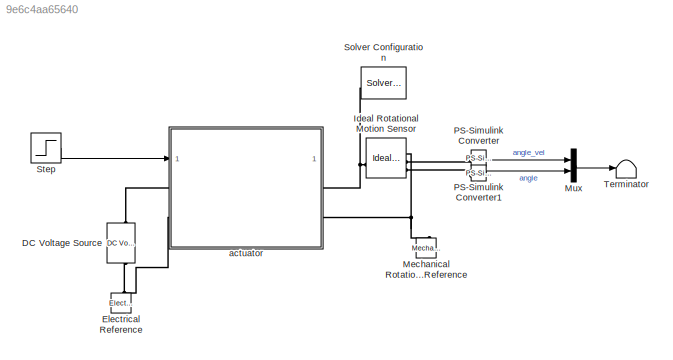
MODEL slx_9e6c4aa65640
KIND model
CONFIG AbsTol = auto
CONFIG EnableMultiTasking = off
CONFIG FixedStep = auto
CONFIG MaxStep = auto
CONFIG MinStep = auto
CONFIG RelTol = 1e-3
CONFIG SampleTimeConstraint = Unconstrained
CONFIG SolverName = VariableStepAuto
CONFIG StartTime = 0.0
CONFIG StopTime = 10.0
BLOCK [Reference] DC Voltage Source  REF=fl_lib/Electrical/Electrical Sources/DC Voltage Source
  NameLocation = right
  SourceBlock = fl_lib/Electrical/Electrical Sources/DC Voltage Source
  SourceType = DC Voltage Source
BLOCK [Reference] Electrical Reference  REF=fl_lib/Electrical/Electrical Elements/Electrical Reference
  LibrarySourceBlock = ee_lib/Connectors &\nReferences/Electrical Reference
  NameLocation = right
  SourceBlock = fl_lib/Electrical/Electrical Elements/Electrical Reference
  SourceType = Electrical Reference
BLOCK [Reference] Ideal Rotational Motion Sensor  REF=fl_lib/Mechanical/Mechanical Sensors/Ideal Rotational
Motion Sensor
  SourceBlock = fl_lib/Mechanical/Mechanical Sensors/Ideal Rotational\nMotion Sensor
  SourceType = Ideal Rotational\nMotion Sensor
BLOCK [Reference] Mechanical Rotational Reference  REF=fl_lib/Mechanical/Rotational Elements/Mechanical
Rotational Reference
  NameLocation = right
  SourceBlock = fl_lib/Mechanical/Rotational Elements/Mechanical\nRotational Reference
  SourceType = Mechanical\nRotational Reference
BLOCK [Mux] Mux
  DisplayOption = bar
  Inputs = 2
BLOCK [Reference] PS-Simulink Converter  REF=nesl_utility/PS-Simulink
Converter
  SourceBlock = nesl_utility/PS-Simulink\nConverter
  SourceType = PS-Simulink\nConverter
BLOCK [Reference] PS-Simulink Converter1  REF=nesl_utility/PS-Simulink
Converter
  SourceBlock = nesl_utility/PS-Simulink\nConverter
  SourceType = PS-Simulink\nConverter
BLOCK [Reference] Solver Configuration  REF=nesl_utility/Solver
Configuration
  NameLocation = top
  SourceBlock = nesl_utility/Solver\nConfiguration
  SourceType = Solver\nConfiguration
BLOCK [Step] Step
  After = 10
  SampleTime = 0
  Time = 2
BLOCK [Terminator] Terminator
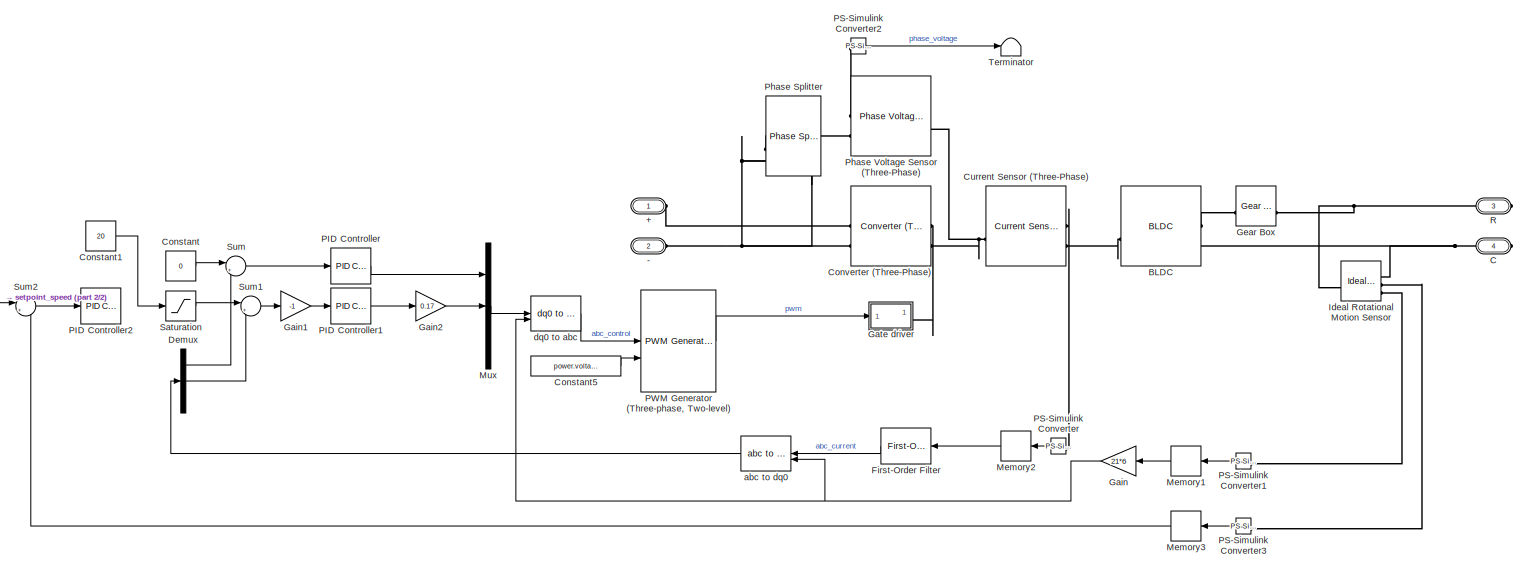
[diagram: actuator - part 1/2, most of the canvas]
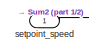
[diagram: actuator - part 2/2, middle left region]
BLOCK [SubSystem] actuator
BLOCK [PMIOPort] actuator/+
  NameLocation = top
  Side = Left
BLOCK [PMIOPort] actuator/-
  NameLocation = top
  Port = 2
  Side = Left
BLOCK [Reference] actuator/BLDC  REF=ee_lib/Electromechanical/Permanent Magnet/BLDC
  SourceBlock = ee_lib/Electromechanical/Permanent Magnet/BLDC
  SourceType = BLDC
BLOCK [PMIOPort] actuator/C
  NameLocation = top
  Port = 4
  Side = Right
BLOCK [Constant] actuator/Constant
  Value = 0
BLOCK [Constant] actuator/Constant1
  Value = 20
BLOCK [Constant] actuator/Constant5
  Value = power.voltage
BLOCK [Reference] actuator/Converter (Three-Phase)  REF=ee_lib/Semiconductors &
Converters/Converters/Converter
(Three-Phase)
  SourceBlock = ee_lib/Semiconductors &\nConverters/Converters/Converter\n(Three-Phase)
  SourceType = Converter\n(Three-Phase)
BLOCK [Reference] actuator/Current Sensor (Three-Phase)  REF=ee_lib/Sensors &
Transducers/Current Sensor
(Three-Phase)
  SourceBlock = ee_lib/Sensors &\nTransducers/Current Sensor\n(Three-Phase)
  SourceType = Current Sensor\n(Three-Phase)
BLOCK [Demux] actuator/Demux
  Outputs = 3
BLOCK [Reference] actuator/First-Order Filter  REF=spsFirstOrderFilterLib/First-Order
Filter
  LibrarySourceBlock = sps_lib/Control/Filters/First-Order\nFilter
  SourceBlock = spsFirstOrderFilterLib/First-Order\nFilter
  SourceType = First-Order Filter
BLOCK [Gain] actuator/Gain
  Gain = 21*6
  NameLocation = top
BLOCK [Gain] actuator/Gain1
  Gain = -1
BLOCK [Gain] actuator/Gain2
  Gain = 0.17
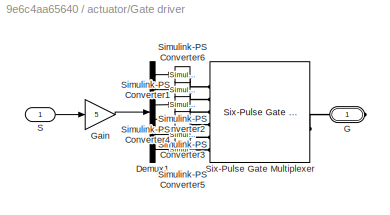
BLOCK [SubSystem] actuator/Gate driver
BLOCK [Demux] actuator/Gate driver/Demux1
  Outputs = 6
BLOCK [PMIOPort] actuator/Gate driver/G
  Side = Right
BLOCK [Gain] actuator/Gate driver/Gain
  Gain = 5
BLOCK [Inport] actuator/Gate driver/S
BLOCK [Reference] actuator/Gate driver/Simulink-PS Converter1  REF=nesl_utility/Simulink-PS
Converter
  SourceBlock = nesl_utility/Simulink-PS\nConverter
  SourceType = Simulink-PS\nConverter
BLOCK [Reference] actuator/Gate driver/Simulink-PS Converter2  REF=nesl_utility/Simulink-PS
Converter
  SourceBlock = nesl_utility/Simulink-PS\nConverter
  SourceType = Simulink-PS\nConverter
BLOCK [Reference] actuator/Gate driver/Simulink-PS Converter3  REF=nesl_utility/Simulink-PS
Converter
  SourceBlock = nesl_utility/Simulink-PS\nConverter
  SourceType = Simulink-PS\nConverter
BLOCK [Reference] actuator/Gate driver/Simulink-PS Converter4  REF=nesl_utility/Simulink-PS
Converter
  SourceBlock = nesl_utility/Simulink-PS\nConverter
  SourceType = Simulink-PS\nConverter
BLOCK [Reference] actuator/Gate driver/Simulink-PS Converter5  REF=nesl_utility/Simulink-PS
Converter
  SourceBlock = nesl_utility/Simulink-PS\nConverter
  SourceType = Simulink-PS\nConverter
BLOCK [Reference] actuator/Gate driver/Simulink-PS Converter6  REF=nesl_utility/Simulink-PS
Converter
  SourceBlock = nesl_utility/Simulink-PS\nConverter
  SourceType = Simulink-PS\nConverter
BLOCK [Reference] actuator/Gate driver/Six-Pulse Gate Multiplexer  REF=ee_lib/Semiconductors &
Converters/Converters/Six-Pulse Gate
Multiplexer
  SourceBlock = ee_lib/Semiconductors &\nConverters/Converters/Six-Pulse Gate\nMultiplexer
  SourceType = Six-Pulse Gate\nMultiplexer
BLOCK [Reference] actuator/Gear Box  REF=fl_lib/Mechanical/Mechanisms/Gear Box
  SourceBlock = fl_lib/Mechanical/Mechanisms/Gear Box
  SourceType = Gear Box
BLOCK [Reference] actuator/Ideal Rotational Motion Sensor  REF=fl_lib/Mechanical/Mechanical Sensors/Ideal Rotational
Motion Sensor
  SourceBlock = fl_lib/Mechanical/Mechanical Sensors/Ideal Rotational\nMotion Sensor
  SourceType = Ideal Rotational\nMotion Sensor
BLOCK [Memory] actuator/Memory1
BLOCK [Memory] actuator/Memory2
BLOCK [Memory] actuator/Memory3
BLOCK [Mux] actuator/Mux
  DisplayOption = bar
  Inputs = 3
BLOCK [Reference] actuator/PID Controller  REF=slpidlib/PID Controller
  LibrarySourceBlock = simulink/Continuous/PID Controller
  SourceBlock = slpidlib/PID Controller
  SourceType = PID 1dof
BLOCK [Reference] actuator/PID Controller1  REF=slpidlib/PID Controller
  LibrarySourceBlock = simulink/Continuous/PID Controller
  SourceBlock = slpidlib/PID Controller
  SourceType = PID 1dof
BLOCK [Reference] actuator/PID Controller2  REF=slpidlib/PID Controller
  LibrarySourceBlock = simulink/Continuous/PID Controller
  SourceBlock = slpidlib/PID Controller
  SourceType = PID 1dof
BLOCK [Reference] actuator/PS-Simulink Converter  REF=nesl_utility/PS-Simulink
Converter
  SourceBlock = nesl_utility/PS-Simulink\nConverter
  SourceType = PS-Simulink\nConverter
BLOCK [Reference] actuator/PS-Simulink Converter1  REF=nesl_utility/PS-Simulink
Converter
  SourceBlock = nesl_utility/PS-Simulink\nConverter
  SourceType = PS-Simulink\nConverter
BLOCK [Reference] actuator/PS-Simulink Converter2  REF=nesl_utility/PS-Simulink
Converter
  SourceBlock = nesl_utility/PS-Simulink\nConverter
  SourceType = PS-Simulink\nConverter
BLOCK [Reference] actuator/PS-Simulink Converter3  REF=nesl_utility/PS-Simulink
Converter
  SourceBlock = nesl_utility/PS-Simulink\nConverter
  SourceType = PS-Simulink\nConverter
BLOCK [Reference] actuator/PWM Generator (Three-phase, Two-level)  REF=eePwmGeneratorTwoLevel/PWM Generator
(Three-phase, Two-level)
  LibrarySourceBlock = ee_sl_lib/Pulse Width\nModulation/PWM Generator\n(Three-phase, Two-level)
  SourceBlock = eePwmGeneratorTwoLevel/PWM Generator\n(Three-phase, Two-level)
  SourceType = PWM Generator (three-phase, two-level)
BLOCK [Reference] actuator/Phase Splitter  REF=ee_lib/Connectors &
References/Phase Splitter
  NameLocation = top
  SourceBlock = ee_lib/Connectors &\nReferences/Phase Splitter
  SourceType = Phase Splitter
BLOCK [Reference] actuator/Phase Voltage Sensor (Three-Phase)  REF=ee_lib/Sensors &
Transducers/Phase Voltage Sensor
(Three-Phase)
  SourceBlock = ee_lib/Sensors &\nTransducers/Phase Voltage Sensor\n(Three-Phase)
  SourceType = Phase Voltage Sensor\n(Three-Phase)
BLOCK [PMIOPort] actuator/R
  NameLocation = top
  Port = 3
  Side = Right
BLOCK [Saturate] actuator/Saturation
  LowerLimit = -24
  UpperLimit = 24
BLOCK [Sum] actuator/Sum
  Inputs = |+-
BLOCK [Sum] actuator/Sum1
  Inputs = |+-
BLOCK [Sum] actuator/Sum2
  Inputs = |+-
BLOCK [Terminator] actuator/Terminator
BLOCK [Reference] actuator/abc to dq0  REF=spsabctodq0Lib/abc to dq0
  LibrarySourceBlock = sps_lib/Control/abc to dq0
  SourceBlock = spsabctodq0Lib/abc to dq0
  SourceType = abc to dq0 Transformation
BLOCK [Reference] actuator/dq0 to abc  REF=spsdq0toabcLib/dq0 to abc
  LibrarySourceBlock = sps_lib/Control/dq0 to abc
  SourceBlock = spsdq0toabcLib/dq0 to abc
  SourceType = dq0 to abc Transformation
BLOCK [Inport] actuator/setpoint_speed
LINE Mux:1 -> Terminator:1
LINE PS-Simulink Converter1:1 -> Mux:2
LINE PS-Simulink Converter:1 -> Mux:1
LINE Step:1 -> actuator:1
LINE actuator/Constant1:1 -> actuator/Saturation:1
LINE actuator/Constant5:1 -> actuator/PWM Generator (Three-phase, Two-level):2
LINE actuator/Constant:1 -> actuator/Sum:1
LINE actuator/Demux:1 -> actuator/Sum:2
LINE actuator/Demux:2 -> actuator/Sum1:2
LINE actuator/First-Order Filter:1 -> actuator/abc to dq0:1
LINE actuator/Gain1:1 -> actuator/PID Controller1:1
LINE actuator/Gain2:1 -> actuator/Mux:2
NET actuator/Gain:1 -> actuator/abc to dq0:2, actuator/dq0 to abc:2
LINE actuator/Gate driver/Demux1:1 -> actuator/Gate driver/Simulink-PS Converter6:1
LINE actuator/Gate driver/Demux1:2 -> actuator/Gate driver/Simulink-PS Converter1:1
LINE actuator/Gate driver/Demux1:3 -> actuator/Gate driver/Simulink-PS Converter2:1
LINE actuator/Gate driver/Demux1:4 -> actuator/Gate driver/Simulink-PS Converter3:1
LINE actuator/Gate driver/Demux1:5 -> actuator/Gate driver/Simulink-PS Converter4:1
LINE actuator/Gate driver/Demux1:6 -> actuator/Gate driver/Simulink-PS Converter5:1
LINE actuator/Gate driver/Gain:1 -> actuator/Gate driver/Demux1:1
LINE actuator/Gate driver/S:1 -> actuator/Gate driver/Gain:1
LINE actuator/Memory1:1 -> actuator/Gain:1
LINE actuator/Memory2:1 -> actuator/First-Order Filter:1
LINE actuator/Memory3:1 -> actuator/Sum2:2
LINE actuator/Mux:1 -> actuator/dq0 to abc:1
LINE actuator/PID Controller1:1 -> actuator/Gain2:1
LINE actuator/PID Controller:1 -> actuator/Mux:1
LINE actuator/PS-Simulink Converter1:1 -> actuator/Memory1:1
LINE actuator/PS-Simulink Converter2:1 -> actuator/Terminator:1
LINE actuator/PS-Simulink Converter3:1 -> actuator/Memory3:1
LINE actuator/PS-Simulink Converter:1 -> actuator/Memory2:1
LINE actuator/PWM Generator (Three-phase, Two-level):1 -> actuator/Gate driver:1
LINE actuator/Saturation:1 -> actuator/Sum1:1
LINE actuator/Sum1:1 -> actuator/Gain1:1
LINE actuator/Sum2:1 -> actuator/PID Controller2:1
LINE actuator/Sum:1 -> actuator/PID Controller:1
LINE actuator/abc to dq0:1 -> actuator/Demux:1
LINE actuator/dq0 to abc:1 -> actuator/PWM Generator (Three-phase, Two-level):1
LINE actuator/setpoint_speed:1 -> actuator/Sum2:1
PLINE DC Voltage Source:LConn1 -- actuator:LConn1
PNET net1: DC Voltage Source:RConn1 -- Electrical Reference:LConn1 -- actuator:LConn2
PNET net2: Ideal Rotational Motion Sensor:LConn1 -- Solver Configuration:RConn1 -- actuator:RConn1
PNET net3: Ideal Rotational Motion Sensor:RConn1 -- Mechanical Rotational Reference:LConn1 -- actuator:RConn2
PLINE Ideal Rotational Motion Sensor:RConn2 -- PS-Simulink Converter:LConn1
PLINE Ideal Rotational Motion Sensor:RConn3 -- PS-Simulink Converter1:LConn1
PLINE actuator/+:RConn1 -- actuator/Converter (Three-Phase):RConn1
PNET net4: actuator/-:RConn1 -- actuator/Converter (Three-Phase):RConn2 -- actuator/Phase Splitter:RConn1 -- actuator/Phase Splitter:RConn2 -- actuator/Phase Splitter:RConn3
PLINE actuator/BLDC:LConn1 -- actuator/Current Sensor (Three-Phase):RConn2
PLINE actuator/BLDC:RConn1 -- actuator/Gear Box:LConn1
PNET net5: actuator/BLDC:RConn2 -- actuator/C:RConn1 -- actuator/Ideal Rotational Motion Sensor:RConn1
PLINE actuator/Converter (Three-Phase):LConn1 -- actuator/Gate driver:RConn1
PNET net6: actuator/Converter (Three-Phase):LConn2 -- actuator/Current Sensor (Three-Phase):LConn1 -- actuator/Phase Voltage Sensor (Three-Phase):LConn1
PLINE actuator/Current Sensor (Three-Phase):RConn1 -- actuator/PS-Simulink Converter:LConn1
PLINE actuator/Gate driver/G:RConn1 -- actuator/Gate driver/Six-Pulse Gate Multiplexer:RConn1
PLINE actuator/Gate driver/Simulink-PS Converter1:RConn1 -- actuator/Gate driver/Six-Pulse Gate Multiplexer:LConn2
PLINE actuator/Gate driver/Simulink-PS Converter2:RConn1 -- actuator/Gate driver/Six-Pulse Gate Multiplexer:LConn3
PLINE actuator/Gate driver/Simulink-PS Converter3:RConn1 -- actuator/Gate driver/Six-Pulse Gate Multiplexer:LConn4
PLINE actuator/Gate driver/Simulink-PS Converter4:RConn1 -- actuator/Gate driver/Six-Pulse Gate Multiplexer:LConn5
PLINE actuator/Gate driver/Simulink-PS Converter5:RConn1 -- actuator/Gate driver/Six-Pulse Gate Multiplexer:LConn6
PLINE actuator/Gate driver/Simulink-PS Converter6:RConn1 -- actuator/Gate driver/Six-Pulse Gate Multiplexer:LConn1
PNET net7: actuator/Gear Box:RConn1 -- actuator/Ideal Rotational Motion Sensor:LConn1 -- actuator/R:RConn1
PLINE actuator/Ideal Rotational Motion Sensor:RConn2 -- actuator/PS-Simulink Converter3:LConn1
PLINE actuator/Ideal Rotational Motion Sensor:RConn3 -- actuator/PS-Simulink Converter1:LConn1
PLINE actuator/PS-Simulink Converter2:LConn1 -- actuator/Phase Voltage Sensor (Three-Phase):RConn1
PLINE actuator/Phase Splitter:LConn1 -- actuator/Phase Voltage Sensor (Three-Phase):RConn2
note: NET lines group one-source signal fan-out (src -> all destinations, sorted); 1:1 wires keep LINE; PNET lines group multi-terminal physical nets as a canonical sorted terminal list (undirected conserving connections); 2-terminal nets keep the pairwise PLINE form
